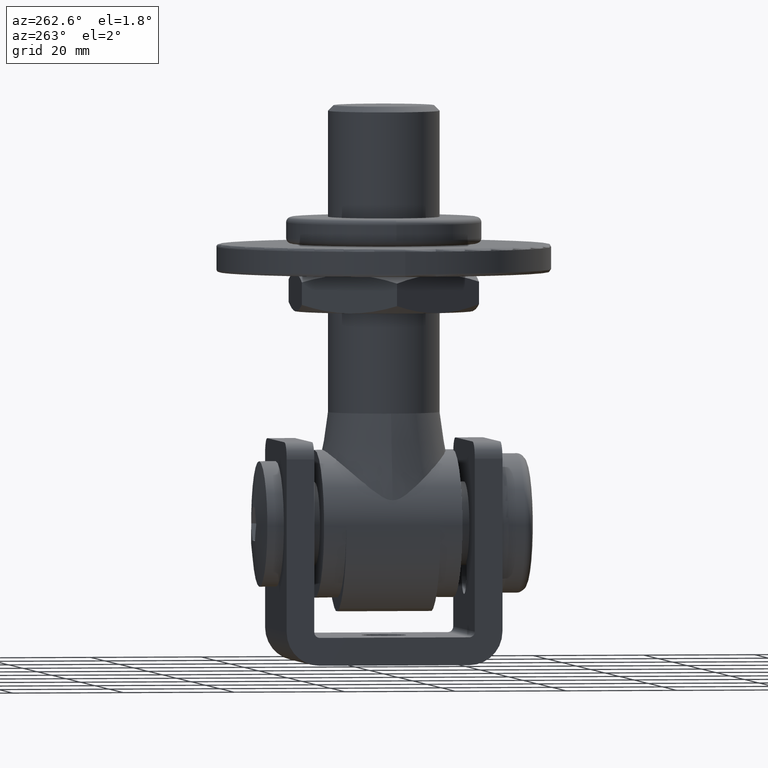
[diagram: clean part render]
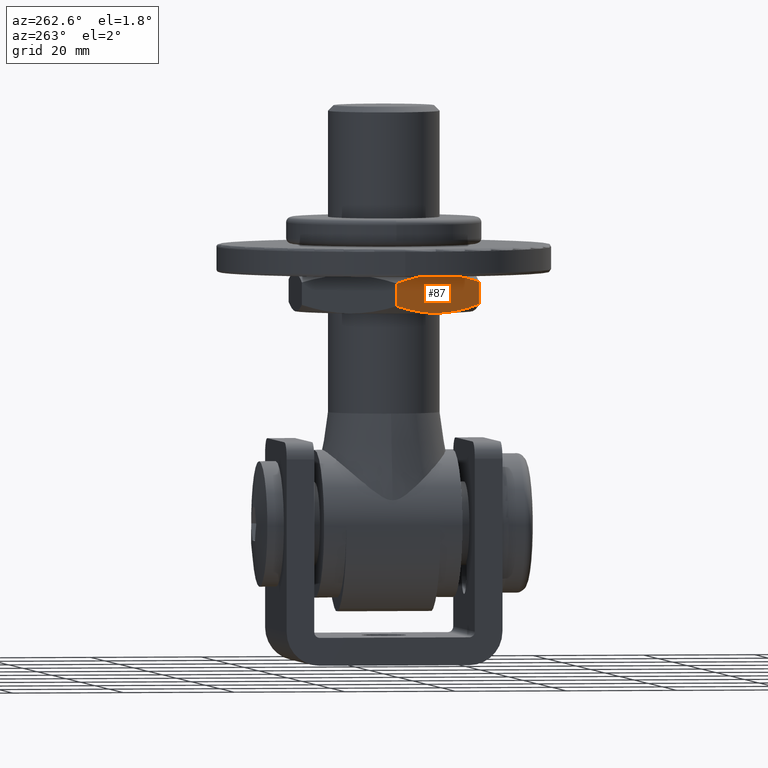
[diagram: same view with one face highlighted and labeled with its STEP entity id]
A machine part, auxiliary view. The second image highlights one B-rep face of the part: STEP entity #87.
In plain terms, the highlighted planar face has unit normal (0.866, 0.5, 0).
Its self-contained STEP definition (entity closure, byte-faithful):
#87 = ADVANCED_FACE ( 'NONE', ( #14900 ), #5323, .F. ) ;
#234 = CARTESIAN_POINT ( 'NONE',  ( 9.237604307034009921, -16.00000000000000000, 10.57093764036737404 ) ) ;
#281 = B_SPLINE_CURVE_WITH_KNOTS ( 'NONE', 3,
 ( #4056, #10512, #3103, #10409, #12965, #9288 ),
 .UNSPECIFIED., .F., .F.,
 ( 4, 2, 4 ),
 ( 2.380728653447981321E-07, 0.004673709274681786714, 0.009347180476498228099 ),
 .UNSPECIFIED. ) ;
#285 = VERTEX_POINT ( 'NONE', #15387 ) ;
#345 = CARTESIAN_POINT ( 'NONE',  ( 9.993179946912185585, -14.69130460276963390, 6.092830560555619890 ) ) ;
#593 = CARTESIAN_POINT ( 'NONE',  ( 10.75126968472745759, -13.37825466017701714, 11.36529842842716143 ) ) ;
#650 = CARTESIAN_POINT ( 'NONE',  ( 9.237604307034009921, -16.00000000000000000, 10.57093764036737404 ) ) ;
#1098 = CARTESIAN_POINT ( 'NONE',  ( 15.42103113037999229, -5.289990577080533107, 5.264493485096240377 ) ) ;
#1899 = ORIENTED_EDGE ( 'NONE', *, *, #8221, .T. ) ;
#1971 = VERTEX_POINT ( 'NONE', #7083 ) ;
#2330 = CARTESIAN_POINT ( 'NONE',  ( 17.72151998025051967, -1.305427006859081862, 6.093920024012822623 ) ) ;
#2588 = CARTESIAN_POINT ( 'NONE',  ( 13.85640646055101932, -7.999999999999989342, 12.00000000000000711 ) ) ;
#2608 = ORIENTED_EDGE ( 'NONE', *, *, #13912, .T. ) ;
#2923 = CARTESIAN_POINT ( 'NONE',  ( 13.85640646055101932, -7.999999999999989342, 5.099999999999992539 ) ) ;
#3026 = CARTESIAN_POINT ( 'NONE',  ( 13.06949971087076534, -9.362962471265081632, 5.099999999999992539 ) ) ;
#3103 = CARTESIAN_POINT ( 'NONE',  ( 16.95853839626952109, -2.626949875553557856, 11.36655952157195593 ) ) ;
#4056 = CARTESIAN_POINT ( 'NONE',  ( 18.47520861406802339, 4.218902546677390755E-15, 10.57093764036737049 ) ) ;
#4119 = CARTESIAN_POINT ( 'NONE',  ( 13.46442438202182323, -8.678932875669010727, 12.00000000000000888 ) ) ;
#4136 = LINE ( 'NONE', #13021, #9443 ) ;
#4252 = EDGE_CURVE ( 'NONE', #285, #1971, #4136, .T. ) ;
#4262 = CARTESIAN_POINT ( 'NONE',  ( 13.85640646055101932, -7.999999999999989342, 5.099999999999992539 ) ) ;
#4330 = B_SPLINE_CURVE_WITH_KNOTS ( 'NONE', 3,
 ( #7573, #345, #5238, #10121, #3026, #2923 ),
 .UNSPECIFIED., .F., .F.,
 ( 4, 2, 4 ),
 ( 2.380728653448104670E-07, 0.004673709274681794520, 0.009347180476498245447 ),
 .UNSPECIFIED. ) ;
#4357 = B_SPLINE_CURVE_WITH_KNOTS ( 'NONE', 3,
 ( #13231, #14293, #8487, #1098, #14400, #7167, #2330, #15643 ),
 .UNSPECIFIED., .F., .F.,
 ( 4, 2, 2, 4 ),
 ( 0.009347180476498245447, 0.01167517798875584815, 0.01400317550101344913, 0.01865917052552865454 ),
 .UNSPECIFIED. ) ;
#4616 = VERTEX_POINT ( 'NONE', #2588 ) ;
#4929 = VERTEX_POINT ( 'NONE', #4262 ) ;
#5238 = CARTESIAN_POINT ( 'NONE',  ( 10.75427452483251578, -13.37305012444643282, 5.733440478428047271 ) ) ;
#5323 = PLANE ( 'NONE',  #6019 ) ;
#5376 = DIRECTION ( 'NONE',  ( -0.8660254037844387076, 0.4999999999999998890, 0.000000000000000000 ) ) ;
#5387 = CARTESIAN_POINT ( 'NONE',  ( 13.85640646055101932, -7.999999999999989342, 12.00000000000000711 ) ) ;
#6019 = AXIS2_PLACEMENT_3D ( 'NONE', #9083, #5376, #7769 ) ;
#7050 = CARTESIAN_POINT ( 'NONE',  ( 9.237604307034009921, -16.00000000000000000, 12.00000000000000000 ) ) ;
#7083 = CARTESIAN_POINT ( 'NONE',  ( 18.47520861406802339, 3.981643857652315082E-15, 6.529062359632630042 ) ) ;
#7106 = DIRECTION ( 'NONE',  ( -0.000000000000000000, -0.000000000000000000, -1.000000000000000000 ) ) ;
#7167 = CARTESIAN_POINT ( 'NONE',  ( 16.96154323637457750, -2.621745339822975751, 5.734701571572845324 ) ) ;
#7256 = B_SPLINE_CURVE_WITH_KNOTS ( 'NONE', 3,
 ( #5387, #4119, #7828, #11476, #8936, #593, #11271, #650 ),
 .UNSPECIFIED., .F., .F.,
 ( 4, 2, 2, 4 ),
 ( 0.009347180476498228099, 0.01167517798875583428, 0.01400317550101344045, 0.01865917052552865107 ),
 .UNSPECIFIED. ) ;
#7558 = CARTESIAN_POINT ( 'NONE',  ( 9.237604307034009921, -16.00000000000000000, 6.529062359632626489 ) ) ;
#7573 = CARTESIAN_POINT ( 'NONE',  ( 9.237604307034009921, -16.00000000000000000, 6.529062359632626489 ) ) ;
#7769 = DIRECTION ( 'NONE',  ( -0.4999999999999998890, -0.8660254037844387076, 0.000000000000000000 ) ) ;
#7828 = CARTESIAN_POINT ( 'NONE',  ( 13.07068340436248022, -9.360912253996836796, 11.96622235084400288 ) ) ;
#7901 = EDGE_CURVE ( 'NONE', #8555, #13869, #14857, .T. ) ;
#8221 = EDGE_CURVE ( 'NONE', #13869, #4929, #4330, .T. ) ;
#8487 = CARTESIAN_POINT ( 'NONE',  ( 14.64212951673956020, -6.639087746003147217, 5.133777649155998546 ) ) ;
#8555 = VERTEX_POINT ( 'NONE', #234 ) ;
#8936 = CARTESIAN_POINT ( 'NONE',  ( 11.90493609038149891, -11.38004583059885455, 11.73869402661048511 ) ) ;
#9083 = CARTESIAN_POINT ( 'NONE',  ( 9.237604307034009921, -16.00000000000000000, 12.00000000000000000 ) ) ;
#9288 = CARTESIAN_POINT ( 'NONE',  ( 13.85640646055101932, -7.999999999999989342, 12.00000000000000711 ) ) ;
#9443 = VECTOR ( 'NONE', #14296, 1000.000000000000000 ) ;
#9766 = VECTOR ( 'NONE', #7106, 1000.000000000000000 ) ;
#10121 = CARTESIAN_POINT ( 'NONE',  ( 12.29237493771305978, -10.70898206219465720, 5.236197193266320937 ) ) ;
#10275 = EDGE_CURVE ( 'NONE', #4929, #1971, #4357, .T. ) ;
#10409 = CARTESIAN_POINT ( 'NONE',  ( 15.42043798338897886, -5.291017937805325033, 11.86380280673367693 ) ) ;
#10456 = ORIENTED_EDGE ( 'NONE', *, *, #4252, .F. ) ;
#10492 = ORIENTED_EDGE ( 'NONE', *, *, #13500, .T. ) ;
#10512 = CARTESIAN_POINT ( 'NONE',  ( 17.71963297418984951, -1.308695397230361435, 11.00716943944438420 ) ) ;
#11271 = CARTESIAN_POINT ( 'NONE',  ( 9.991292940851517201, -14.69457299314091436, 11.00607997598718590 ) ) ;
#11476 = CARTESIAN_POINT ( 'NONE',  ( 12.29178179072204813, -10.71000942291945357, 11.83550651490376104 ) ) ;
#12522 = ORIENTED_EDGE ( 'NONE', *, *, #7901, .T. ) ;
#12965 = CARTESIAN_POINT ( 'NONE',  ( 14.64331321023127508, -6.637037528734903269, 12.00000000000000711 ) ) ;
#13021 = CARTESIAN_POINT ( 'NONE',  ( 18.47520861406802339, 3.901909142610945486E-15, 12.00000000000000000 ) ) ;
#13231 = CARTESIAN_POINT ( 'NONE',  ( 13.85640646055101932, -7.999999999999989342, 5.099999999999992539 ) ) ;
#13500 = EDGE_CURVE ( 'NONE', #4616, #8555, #7256, .T. ) ;
#13869 = VERTEX_POINT ( 'NONE', #7558 ) ;
#13912 = EDGE_CURVE ( 'NONE', #285, #4616, #281, .T. ) ;
#14293 = CARTESIAN_POINT ( 'NONE',  ( 14.24838853908021541, -7.321067124330972398, 5.099999999999993427 ) ) ;
#14296 = DIRECTION ( 'NONE',  ( -0.000000000000000000, -0.000000000000000000, -1.000000000000000000 ) ) ;
#14323 = ORIENTED_EDGE ( 'NONE', *, *, #10275, .T. ) ;
#14400 = CARTESIAN_POINT ( 'NONE',  ( 15.80787683072053973, -4.619954169401132127, 5.361305973389522528 ) ) ;
#14857 = LINE ( 'NONE', #7050, #9766 ) ;
#14900 = FACE_OUTER_BOUND ( 'NONE', #15341, .T. ) ;
#15341 = EDGE_LOOP ( 'NONE', ( #12522, #1899, #14323, #10456, #2608, #10492 ) ) ;
#15387 = CARTESIAN_POINT ( 'NONE',  ( 18.47520861406802339, 4.218902546677390755E-15, 10.57093764036737049 ) ) ;
#15643 = CARTESIAN_POINT ( 'NONE',  ( 18.47520861406802339, 3.981643857652315082E-15, 6.529062359632630042 ) ) ;